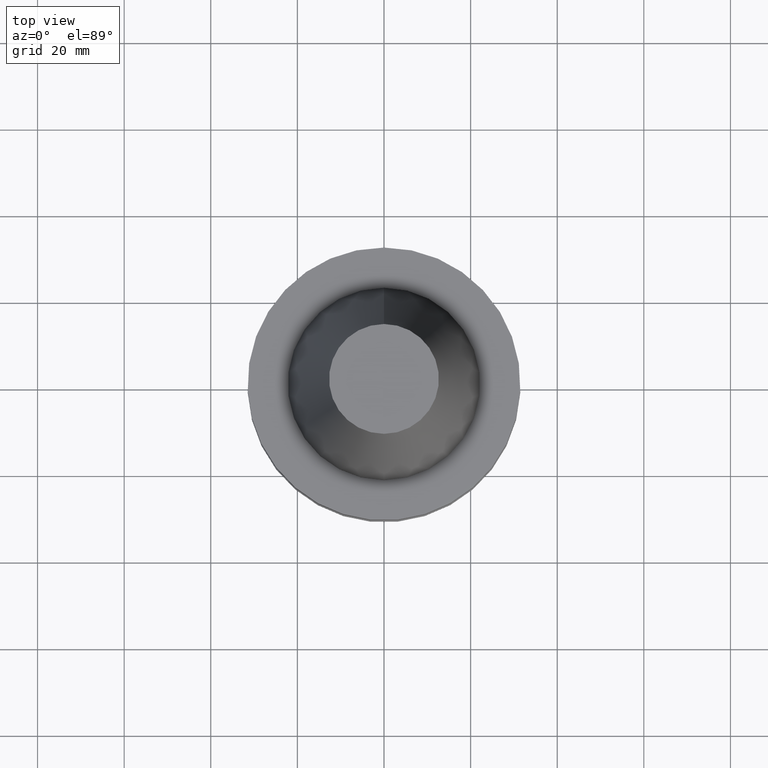
[diagram: clean part render]
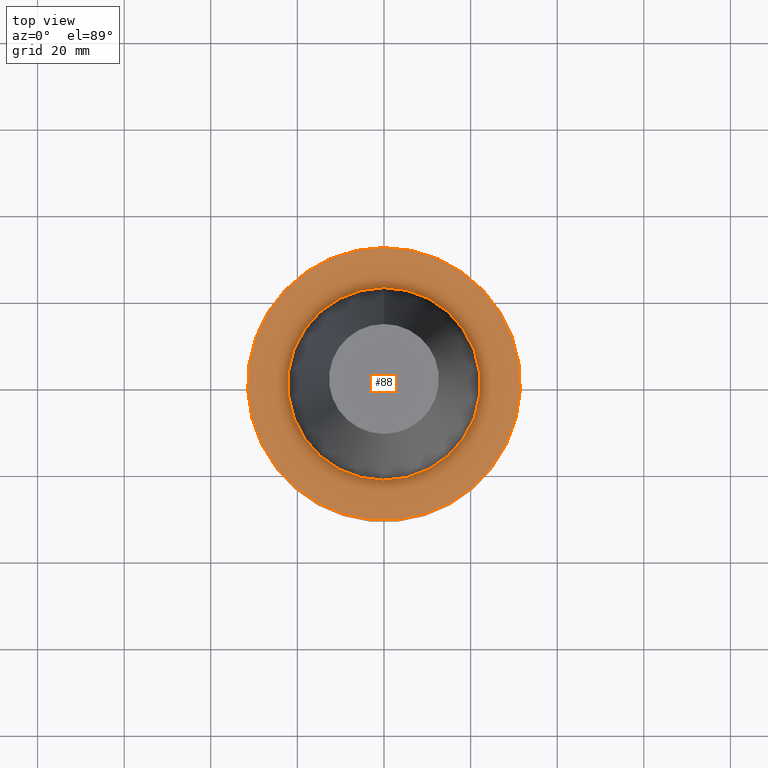
[diagram: same view with one face highlighted and labeled with its STEP entity id]
A machine part, top view. The second image highlights one B-rep face of the part: STEP entity #88.
In plain terms, the highlighted planar face has unit normal (-0, -0, 1).
Its self-contained STEP definition (entity closure, byte-faithful):
#88=ADVANCED_FACE('Unnamed[1]',(#226,#227),#228,.T.);
#111=EDGE_CURVE('Unnamed[1]',#262,#262,#263,.T.);
#113=EDGE_CURVE('Unnamed[1]',#265,#265,#266,.T.);
#226=FACE_OUTER_BOUND('',#415,.T.);
#227=FACE_BOUND('',#416,.T.);
#228=PLANE('',#417);
#262=VERTEX_POINT('',#460);
#263=CIRCLE('',#461,22.225);
#265=VERTEX_POINT('',#464);
#266=CIRCLE('',#465,31.4999999999996);
#415=EDGE_LOOP('',(#626));
#416=EDGE_LOOP('',(#627));
#417=AXIS2_PLACEMENT_3D('',#628,#629,#630);
#460=CARTESIAN_POINT('',(6.12323399573622E-017,22.2250000000001,-0.999999999999912));
#461=AXIS2_PLACEMENT_3D('',#668,#669,#670);
#464=CARTESIAN_POINT('',(6.12323399573568E-017,31.4999999999997,-0.999999999999825));
#465=AXIS2_PLACEMENT_3D('',#671,#672,#673);
#626=ORIENTED_EDGE('',*,*,#113,.F.);
#627=ORIENTED_EDGE('',*,*,#111,.T.);
#628=CARTESIAN_POINT('',(6.12323399573595E-017,26.8624999999999,-0.999999999999869));
#629=DIRECTION('',(-6.12323399573677E-017,-9.35138060429241E-015,1.0));
#630=DIRECTION('',(5.77434068963536E-031,-1.0,-9.35138060429241E-015));
#668=CARTESIAN_POINT('',(6.12323399573616E-017,4.61024222386252E-014,-0.999999999999901));
#669=DIRECTION('',(6.12323399573677E-017,-4.60918739095494E-016,-1.0));
#670=DIRECTION('',(2.33959801942475E-032,1.0,-4.60918739095494E-016));
#671=CARTESIAN_POINT('',(6.12323399573563E-017,4.61024222386253E-014,-0.999999999999815));
#672=DIRECTION('',(6.12323399573677E-017,-4.60918739095494E-016,-1.0));
#673=DIRECTION('',(2.33959801942475E-032,1.0,-4.60918739095494E-016));